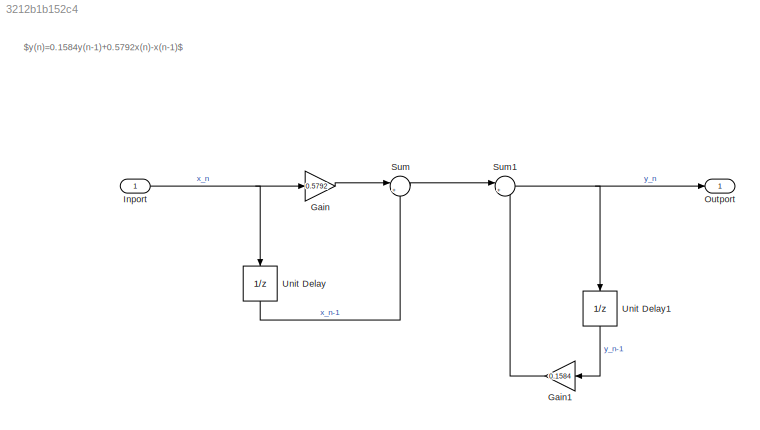
MODEL slx_3212b1b152c4
KIND model
CONFIG AbsTol = auto
CONFIG EnableMultiTasking = off
CONFIG FixedStep = auto
CONFIG MaxStep = auto
CONFIG MinStep = auto
CONFIG RelTol = 1e-3
CONFIG SampleTimeConstraint = Unconstrained
CONFIG SolverName = VariableStepAuto
CONFIG StartTime = 0.0
CONFIG StopTime = 10.0
BLOCK [Gain] Gain
  Gain = 0.5792
BLOCK [Gain] Gain1
  Gain = 0.1584
  NameLocation = top
BLOCK [Inport] Inport
  PortDimensions = 5
BLOCK [Outport] Outport
  PortDimensions = 5
BLOCK [Sum] Sum
  Inputs = |+-
  Ports = [2, 1]
BLOCK [Sum] Sum1
  Inputs = |++
  Ports = [2, 1]
BLOCK [UnitDelay] Unit Delay
  HasFrameUpgradeWarning = on
  NameLocation = left
  SampleTime = -1
BLOCK [UnitDelay] Unit Delay1
  HasFrameUpgradeWarning = on
  NameLocation = left
  SampleTime = -1
ANNOTATION (root): $y(n)=0.1584y(n-1)+0.5792x(n)-x(n-1)$
LINE Gain1:1 -> Sum1:2
LINE Gain:1 -> Sum:1
NET Inport:1 -> Gain:1, Unit Delay:1
NET Sum1:1 -> Outport:1, Unit Delay1:1
LINE Sum:1 -> Sum1:1
LINE Unit Delay1:1 -> Gain1:1
LINE Unit Delay:1 -> Sum:2
note: NET lines group one-source signal fan-out (src -> all destinations, sorted); 1:1 wires keep LINE
